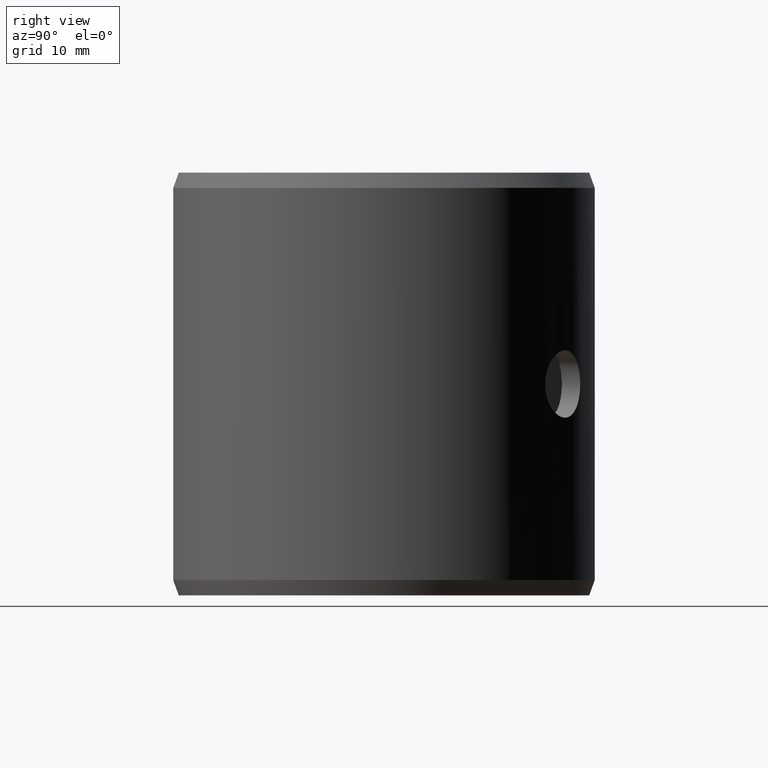
[diagram: clean part render]
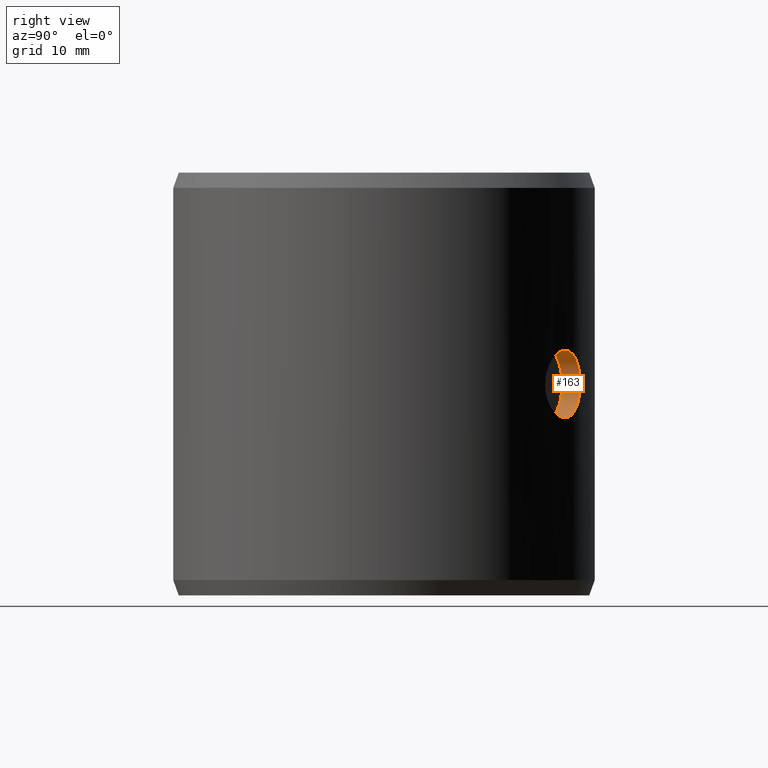
[diagram: same view with one face highlighted and labeled with its STEP entity id]
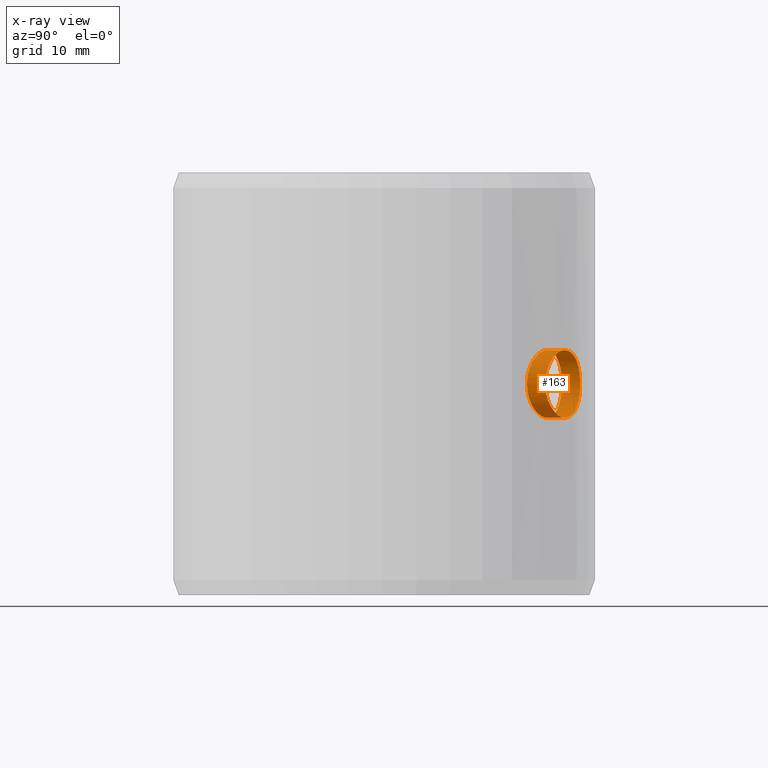
[diagram: x-ray of the same camera — body ghosted, the highlighted face saturated]
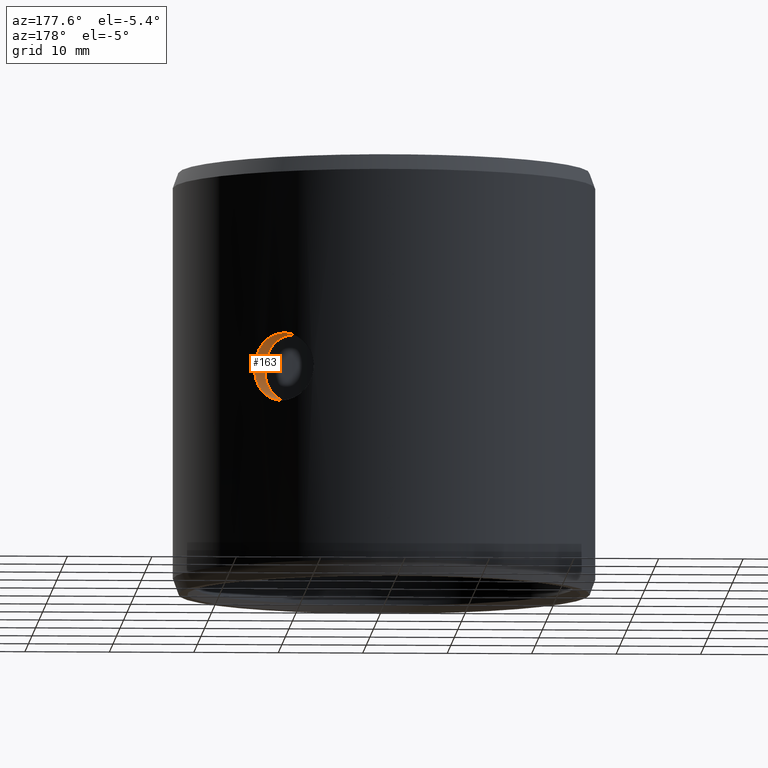
[diagram: same view with one face highlighted and labeled with its STEP entity id]
A machine part, right view. The second image highlights one B-rep face of the part: STEP entity #163.
The next image is the same camera in x-ray: the body ghosted, the highlighted face saturated — about 0% of this face is hidden behind the body in this view.
A second angle (auxiliary view) of the same face is appended — the face is thin or edge-on in the first view.
In plain terms, the highlighted cylindrical surface (bore or boss wall) has radius 4 mm, axis along (0.515, 0.8572, 0).
Its self-contained STEP definition (entity closure, byte-faithful):
#163=ADVANCED_FACE('',(#188,#189),#190,.F.);
#188=FACE_OUTER_BOUND('',#214,.T.);
#189=FACE_OUTER_BOUND('',#215,.T.);
#190=CYLINDRICAL_SURFACE('',#216,0.004);
#214=EDGE_LOOP('',(#297));
#215=EDGE_LOOP('',(#298));
#216=AXIS2_PLACEMENT_3D('',#299,#300,#301);
#297=ORIENTED_EDGE('',*,*,#326,.F.);
#298=ORIENTED_EDGE('',*,*,#327,.F.);
#299=CARTESIAN_POINT('',(0.0171433460140782,-0.0103007614981412,0.025));
#300=DIRECTION('',(0.857167300703911,-0.515038074907061,0.0));
#301=DIRECTION('',(-0.515038074907061,-0.857167300703911,0.0));
#326=EDGE_CURVE('',#368,#368,#369,.T.);
#327=EDGE_CURVE('',#370,#370,#371,.T.);
#368=VERTEX_POINT('',#428);
#369=B_SPLINE_CURVE_WITH_KNOTS('',3,(#429,#430,#431,#432,#433,#434,#435,#436,#437,#438,#439,#440,#441,#442,#443,#444,#445,#446,#447,#448,#449,#450,#451,#452,#453,#454,#455,#456,#457,#458,#459,#460,#461,#462,#463,#464,#465,#466,#467,#468,#469,#470,#471,#472,#473,#474,#475,#476,#477,#478,#479,#480,#481,#482,#483,#484,#485,#486,#487,#488,#489,#490,#491,#492,#493,#494),.UNSPECIFIED.,.T.,.F.,(2,2,2,2,2,2,2,2,2,2,2,2,2,2,2,2,2,2,2,2,2,2,2,2,2,2,2,2,2,2,2,2,2,2,2),(-0.000783071138351041,0.0,0.000783071138351041,0.00156614227670208,0.00234921341505312,0.00313228455340416,0.0039153556917552,0.00469842683010624,0.00548149796845729,0.00626456910680833,0.00704764024515937,0.00783071138351041,0.00861378252186145,0.00939685366021249,0.0101799247985635,0.0109629959369146,0.0117460670752656,0.0125291382136167,0.0133122093519677,0.0140952804903187,0.0148783516286698,0.0156614227670208,0.0164444939053719,0.0172275650437229,0.0180106361820739,0.018793707320425,0.019576778458776,0.0203598495971271,0.0211429207354781,0.0219259918738291,0.0227090630121802,0.0234921341505312,0.0242752052888823,0.0250582764272333,0.0258413475655843),.UNSPECIFIED.);
#370=VERTEX_POINT('',#495);
#371=B_SPLINE_CURVE_WITH_KNOTS('',3,(#496,#497,#498,#499,#500,#501,#502,#503,#504,#505,#506,#507,#508,#509,#510,#511,#512,#513,#514,#515,#516,#517,#518,#519,#520,#521,#522,#523,#524,#525,#526,#527,#528,#529,#530,#531,#532,#533,#534,#535,#536,#537,#538,#539,#540,#541,#542,#543,#544,#545,#546,#547,#548,#549,#550,#551,#552,#553,#554,#555,#556,#557,#558,#559,#560,#561),.UNSPECIFIED.,.T.,.F.,(2,2,2,2,2,2,2,2,2,2,2,2,2,2,2,2,2,2,2,2,2,2,2,2,2,2,2,2,2,2,2,2,2,2,2),(-0.000782774363577456,0.0,0.000782774363577456,0.00156554872715491,0.00234832309073237,0.00313109745430982,0.00391387181788728,0.00469664618146473,0.00547942054504219,0.00626219490861964,0.0070449692721971,0.00782774363577456,0.00861051799935201,0.00939329236292947,0.0101760667265069,0.0109588410900844,0.0117416154536618,0.0125243898172393,0.0133071641808167,0.0140899385443942,0.0148727129079717,0.0156554872715491,0.0164382616351266,0.017221035998704,0.0180038103622815,0.0187865847258589,0.0195693590894364,0.0203521334530138,0.0211349078165913,0.0219176821801688,0.0227004565437462,0.0234832309073237,0.0242660052709011,0.0250487796344786,0.025831553998056),.UNSPECIFIED.);
#428=CARTESIAN_POINT('',(0.0169188944843755,-0.014832431001915,0.025));
#429=CARTESIAN_POINT('',(0.0169188944843755,-0.014832431001915,0.0252648239408134));
#430=CARTESIAN_POINT('',(0.0169188944843755,-0.014832431001915,0.0247351760591866));
#431=CARTESIAN_POINT('',(0.016936375949175,-0.01481255711468,0.0244748849743466));
#432=CARTESIAN_POINT('',(0.0170043405550526,-0.0147344861076063,0.0239629641082524));
#433=CARTESIAN_POINT('',(0.0170556653860712,-0.0146753075894989,0.0237086435633796));
#434=CARTESIAN_POINT('',(0.0171878316754587,-0.0145202898354039,0.0232245117148044));
#435=CARTESIAN_POINT('',(0.0172680848129228,-0.0144251439544006,0.0229949777267228));
#436=CARTESIAN_POINT('',(0.0174547570024016,-0.0141986967429615,0.0225605767934485));
#437=CARTESIAN_POINT('',(0.0175619086449628,-0.0140664069917009,0.0223553159208332));
#438=CARTESIAN_POINT('',(0.0177915462291344,-0.0137748075734931,0.0219871790525546));
#439=CARTESIAN_POINT('',(0.0179149458610226,-0.0136144386403193,0.0218217898879218));
#440=CARTESIAN_POINT('',(0.0181772630804321,-0.0132621767292986,0.0215293499198565));
#441=CARTESIAN_POINT('',(0.018313706033903,-0.0130734960891337,0.0214054147911471));
#442=CARTESIAN_POINT('',(0.0185896470046014,-0.0126780579322357,0.021205742640954));
#443=CARTESIAN_POINT('',(0.0187311701300543,-0.0124683622139208,0.0211286525849882));
#444=CARTESIAN_POINT('',(0.0190126182011899,-0.0120348302802469,0.0210256873622918));
#445=CARTESIAN_POINT('',(0.0191503937224414,-0.0118144306964457,0.021000152232198));
#446=CARTESIAN_POINT('',(0.0194197460387826,-0.0113662577920277,0.0209998491120387));
#447=CARTESIAN_POINT('',(0.019552544543614,-0.0111361563515037,0.0210259412340167));
#448=CARTESIAN_POINT('',(0.0198016752328397,-0.0106868907727312,0.0211282137773826));
#449=CARTESIAN_POINT('',(0.0199190234716017,-0.0104662107951223,0.0212038783046247));
#450=CARTESIAN_POINT('',(0.0201404494756432,-0.0100335118173658,0.021404669012368));
#451=CARTESIAN_POINT('',(0.0202435949286436,-0.00982314386283515,0.0215296788565398));
#452=CARTESIAN_POINT('',(0.0204296789345391,-0.00943003232320062,0.0218189182399421));
#453=CARTESIAN_POINT('',(0.0205140570558744,-0.00924438627613547,0.0219847761415157));
#454=CARTESIAN_POINT('',(0.0206653933560887,-0.00890093994767964,0.0223569202971638));
#455=CARTESIAN_POINT('',(0.0207305060976281,-0.00874743157575961,0.022558319785767));
#456=CARTESIAN_POINT('',(0.0208426031414455,-0.00847687067995027,0.0229909414568819));
#457=CARTESIAN_POINT('',(0.020889942052306,-0.00835886782937066,0.0232250304925547));
#458=CARTESIAN_POINT('',(0.0209646776959172,-0.0081696168480474,0.0237087019930758));
#459=CARTESIAN_POINT('',(0.0209923716961196,-0.00809771922858961,0.0239580119455188));
#460=CARTESIAN_POINT('',(0.0210297277407007,-0.00800020482769744,0.0244716680231499));
#461=CARTESIAN_POINT('',(0.0210391616243807,-0.00797519141803435,0.0247371046779977));
#462=CARTESIAN_POINT('',(0.0210392363160476,-0.00797499437295122,0.0252597209911158));
#463=CARTESIAN_POINT('',(0.0210301803915054,-0.00799901454863984,0.0255198041655211));
#464=CARTESIAN_POINT('',(0.0209928649243888,-0.00809644016311975,0.0260374523369932));
#465=CARTESIAN_POINT('',(0.0209649084586411,-0.00816901620024273,0.0262891873750039));
#466=CARTESIAN_POINT('',(0.0208906836907997,-0.00835700588069574,0.0267707789627647));
#467=CARTESIAN_POINT('',(0.0208437433101393,-0.00847408150909604,0.0270041543350966));
#468=CARTESIAN_POINT('',(0.0207310198627332,-0.00874622821865182,0.027440193979593));
#469=CARTESIAN_POINT('',(0.0206659216534032,-0.00889967153480814,0.0276412819285623));
#470=CARTESIAN_POINT('',(0.0205162418802815,-0.00923949621580412,0.0280103409679439));
#471=CARTESIAN_POINT('',(0.0204307542807203,-0.00942770845315506,0.0281791640429564));
#472=CARTESIAN_POINT('',(0.0202444819768541,-0.00982132153254808,0.028469186035975));
#473=CARTESIAN_POINT('',(0.0201431681907184,-0.0100280523454824,0.0285923386776541));
#474=CARTESIAN_POINT('',(0.0199218707010078,-0.0104607899498858,0.028794053684639));
#475=CARTESIAN_POINT('',(0.0198027427546358,-0.0106848898500095,0.0288711159752374));
#476=CARTESIAN_POINT('',(0.0195545928020703,-0.0111325375390489,0.0289734470362209));
#477=CARTESIAN_POINT('',(0.0194239170476044,-0.0113591933017726,0.0289997952242568));
#478=CARTESIAN_POINT('',(0.019151785613718,-0.011812236610627,0.0290002024013658));
#479=CARTESIAN_POINT('',(0.0190138509755028,-0.0120328372613555,0.0289744746181408));
#480=CARTESIAN_POINT('',(0.0187347925645513,-0.0124628748304767,0.0288729566837062));
#481=CARTESIAN_POINT('',(0.0185921064682813,-0.0126744755688184,0.0287958225925101));
#482=CARTESIAN_POINT('',(0.0183147395033128,-0.0130720721692575,0.0285955447938872));
#483=CARTESIAN_POINT('',(0.0181796535067149,-0.0132588853623534,0.0284728911951081));
#484=CARTESIAN_POINT('',(0.0179184543689647,-0.0136098066005204,0.0281825358572003));
#485=CARTESIAN_POINT('',(0.0177926403679532,-0.0137733943014985,0.0280143641511792));
#486=CARTESIAN_POINT('',(0.0175630227887815,-0.0140650159036033,0.0276466790015331));
#487=CARTESIAN_POINT('',(0.0174577005611196,-0.0141950941704703,0.0274456664366932));
#488=CARTESIAN_POINT('',(0.0172690063808723,-0.0144240571964904,0.0270077611856305));
#489=CARTESIAN_POINT('',(0.0171884301527821,-0.0145195784679027,0.0267771084542363));
#490=CARTESIAN_POINT('',(0.0170568131118944,-0.0146739707124064,0.0262961251508816));
#491=CARTESIAN_POINT('',(0.0170052828583964,-0.0147334011056704,0.026042913413112));
#492=CARTESIAN_POINT('',(0.0169363800152721,-0.0148125549859885,0.0255263490377714));
#493=CARTESIAN_POINT('',(0.0169188944843755,-0.014832431001915,0.0252648239408134));
#494=CARTESIAN_POINT('',(0.0169188944843755,-0.014832431001915,0.0247351760591866));
#495=CARTESIAN_POINT('',(0.019092958366895,-0.0161387403721608,0.025));
#496=CARTESIAN_POINT('',(0.0190929583668951,-0.0161387403721608,0.0247352846364953));
#497=CARTESIAN_POINT('',(0.019092958366895,-0.0161387403721608,0.0252647153635047));
#498=CARTESIAN_POINT('',(0.0191100075456856,-0.0161186311781822,0.0255249206593617));
#499=CARTESIAN_POINT('',(0.0191763435262859,-0.0160396542486521,0.0260367069670796));
#500=CARTESIAN_POINT('',(0.0192264483151425,-0.0159797998159376,0.0262909716591328));
#501=CARTESIAN_POINT('',(0.0193556600886466,-0.0158230445712908,0.0267751578804514));
#502=CARTESIAN_POINT('',(0.019434177887983,-0.0157268614467031,0.0270047337451618));
#503=CARTESIAN_POINT('',(0.0196170663734486,-0.0154981336955543,0.0274392140975417));
#504=CARTESIAN_POINT('',(0.0197221996782076,-0.0153645437920421,0.0276445947564888));
#505=CARTESIAN_POINT('',(0.019947881847943,-0.0150703807471869,0.0280128939775394));
#506=CARTESIAN_POINT('',(0.0200693127310432,-0.0149087500634783,0.0281783183909653));
#507=CARTESIAN_POINT('',(0.0203278946297781,-0.0145542035808324,0.0284707515605977));
#508=CARTESIAN_POINT('',(0.0204627249230477,-0.0143643648001294,0.0285947519690934));
#509=CARTESIAN_POINT('',(0.020735856115913,-0.013967188640799,0.0287943872471358));
#510=CARTESIAN_POINT('',(0.0208761697752705,-0.0137569000395724,0.0288714164881974));
#511=CARTESIAN_POINT('',(0.0211560467789673,-0.0133224790437385,0.0289743394075874));
#512=CARTESIAN_POINT('',(0.0212933915026356,-0.0131018995464122,0.0289998502321985));
#513=CARTESIAN_POINT('',(0.0215626222820773,-0.0126539169322884,0.029000148465435));
#514=CARTESIAN_POINT('',(0.0216957609745178,-0.0124241658250473,0.0289740824792415));
#515=CARTESIAN_POINT('',(0.0219463878674841,-0.0119758924628452,0.0288718587035368));
#516=CARTESIAN_POINT('',(0.0220648364913558,-0.0117559334420258,0.0287962288406747));
#517=CARTESIAN_POINT('',(0.022289053588429,-0.011325063823915,0.0285955533354993));
#518=CARTESIAN_POINT('',(0.0223939979548002,-0.0111155785487148,0.0284704956518536));
#519=CARTESIAN_POINT('',(0.0225838559203347,-0.0107245830987413,0.0281812124670379));
#520=CARTESIAN_POINT('',(0.0226701897315481,-0.0105402880822688,0.0280155202406248));
#521=CARTESIAN_POINT('',(0.0228257763948981,-0.0101989757962121,0.0276430517640914));
#522=CARTESIAN_POINT('',(0.0228929450206155,-0.0100466125255983,0.0274415246960236));
#523=CARTESIAN_POINT('',(0.023008828264826,-0.00977830132672222,0.0270088143853217));
#524=CARTESIAN_POINT('',(0.0230579178968177,-0.00966140374420421,0.0267747836845488));
#525=CARTESIAN_POINT('',(0.0231355988265324,-0.00947387813847453,0.0262909154892163));
#526=CARTESIAN_POINT('',(0.0231644450919709,-0.00940272243081901,0.0260416046920652));
#527=CARTESIAN_POINT('',(0.0232033707625033,-0.00930625009269418,0.0255281954731317));
#528=CARTESIAN_POINT('',(0.023213224625638,-0.00928149785811952,0.0252628076308033));
#529=CARTESIAN_POINT('',(0.0232133010789613,-0.00928130664443843,0.0247403047496917));
#530=CARTESIAN_POINT('',(0.0232038419298176,-0.0093050748396693,0.0244803518562288));
#531=CARTESIAN_POINT('',(0.0231649750750804,-0.00940141626813282,0.0239631117072041));
#532=CARTESIAN_POINT('',(0.0231358264205248,-0.00947331453686184,0.0237111227774637));
#533=CARTESIAN_POINT('',(0.0230587139304086,-0.00965949607125301,0.0232295623170417));
#534=CARTESIAN_POINT('',(0.0230100785080493,-0.00977537304505356,0.0229963720260238));
#535=CARTESIAN_POINT('',(0.0228934725947163,-0.0100454240165126,0.0225599351289016));
#536=CARTESIAN_POINT('',(0.0228263174703383,-0.0101977250336391,0.0223587604476351));
#537=CARTESIAN_POINT('',(0.022672580786454,-0.0105351053910294,0.0219896967132713));
#538=CARTESIAN_POINT('',(0.0225850117368397,-0.010722155894173,0.0218207966518822));
#539=CARTESIAN_POINT('',(0.0223948865816886,-0.0111137949038769,0.0215306129629998));
#540=CARTESIAN_POINT('',(0.0222918595693912,-0.0113195377585723,0.0214074940177244));
#541=CARTESIAN_POINT('',(0.0220678312743023,-0.0117503089737304,0.0212059292143014));
#542=CARTESIAN_POINT('',(0.0219474491669064,-0.0119739273350984,0.0211288016604733));
#543=CARTESIAN_POINT('',(0.0216977926625698,-0.0124205979860991,0.0210265215012522));
#544=CARTESIAN_POINT('',(0.0215669874863443,-0.0126465381133032,0.0210002181744511));
#545=CARTESIAN_POINT('',(0.0212947569227861,-0.0130997405732639,0.0209997845168902));
#546=CARTESIAN_POINT('',(0.0211572288997442,-0.0133205588163997,0.0210255171992776));
#547=CARTESIAN_POINT('',(0.0208798314497473,-0.0137513003213325,0.0211269506740591));
#548=CARTESIAN_POINT('',(0.0207384007386523,-0.013963434419344,0.0212039750414573));
#549=CARTESIAN_POINT('',(0.0204637288243114,-0.0143629582115003,0.0214042949305101));
#550=CARTESIAN_POINT('',(0.0203303205639331,-0.0145508001867463,0.0215269509130078));
#551=CARTESIAN_POINT('',(0.0200729461445311,-0.0149038435776028,0.0218171369332069));
#552=CARTESIAN_POINT('',(0.0199490097845413,-0.0150688880681907,0.0219854845443623));
#553=CARTESIAN_POINT('',(0.0197233068350279,-0.0153631229405589,0.0223533813496699));
#554=CARTESIAN_POINT('',(0.0196200294529659,-0.0154943966041981,0.0225544052529039));
#555=CARTESIAN_POINT('',(0.0194353011558825,-0.0157254873006717,0.0229919535684659));
#556=CARTESIAN_POINT('',(0.0193562472171306,-0.0158223236105855,0.0232232215135062));
#557=CARTESIAN_POINT('',(0.0192275848515827,-0.0159784295706416,0.0237041976979651));
#558=CARTESIAN_POINT('',(0.0191773289348966,-0.0160384785398443,0.0239569990699588));
#559=CARTESIAN_POINT('',(0.0191100112695291,-0.0161186292292099,0.0244737612165099));
#560=CARTESIAN_POINT('',(0.0190929583668951,-0.0161387403721608,0.0247352846364953));
#561=CARTESIAN_POINT('',(0.019092958366895,-0.0161387403721608,0.0252647153635047));